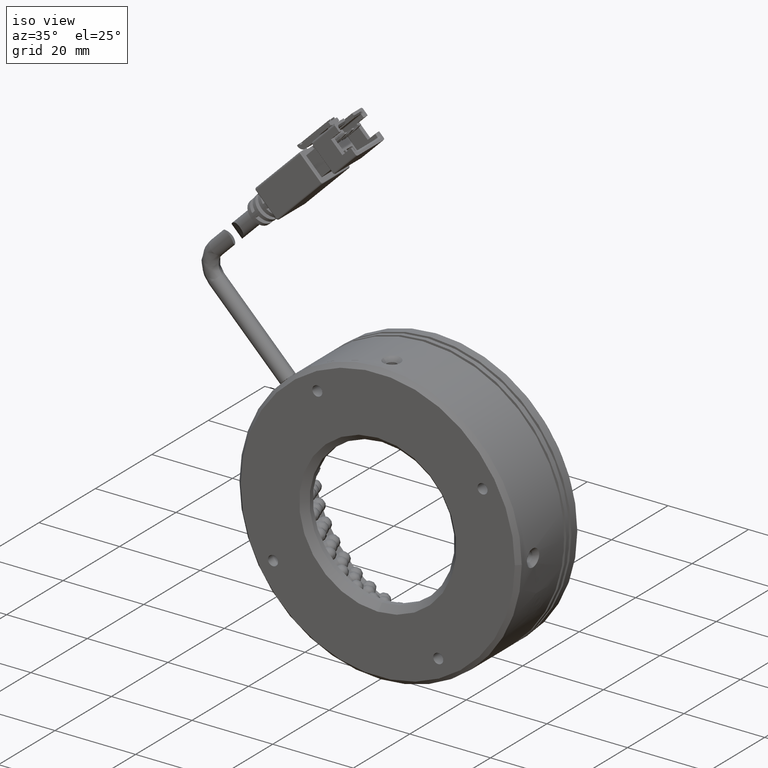
[diagram: clean part render]
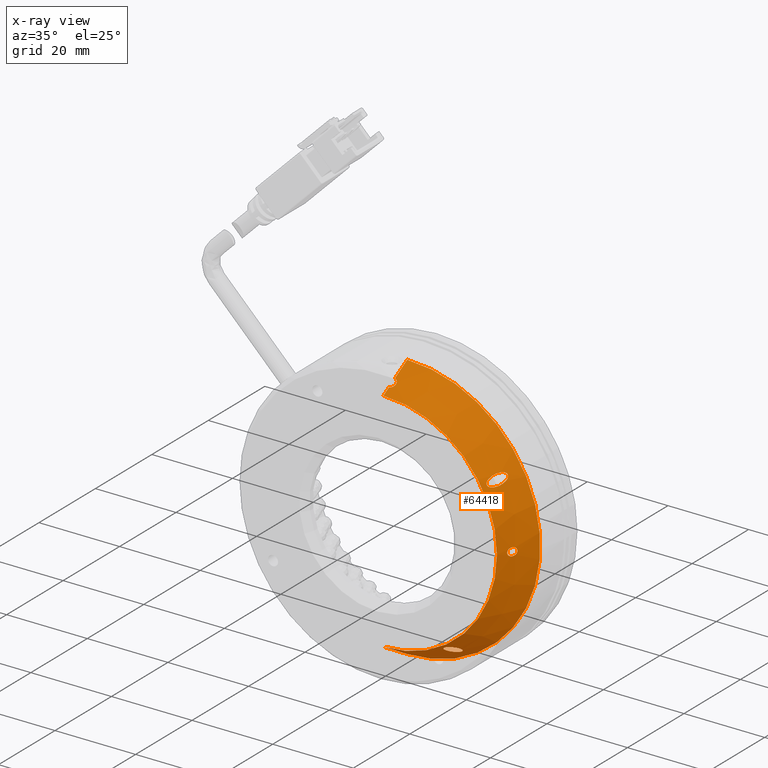
[diagram: x-ray — body ghosted, one internal face saturated and labeled with its STEP entity id]
A machine part, iso view, then the same camera in x-ray: the body is ghosted and one INTERNAL B-rep face — a face not visible from any outside direction — is saturated and labeled: STEP entity #64418.
In plain terms, the highlighted conical surface has half-angle 30 deg.
Its self-contained STEP definition (entity closure, byte-faithful):
#554 = VERTEX_POINT ( 'NONE', #58181 ) ;
#556 = CARTESIAN_POINT ( 'NONE',  ( -37.22376356038466800, -20.73693679055958200, -43.54857790766191500 ) ) ;
#1136 = CARTESIAN_POINT ( 'NONE',  ( -11.51822864637102800, -20.81969408785071400, 3.123709854910631000 ) ) ;
#1298 = CARTESIAN_POINT ( 'NONE',  ( -23.07694984551171700, -23.62697433885663400, -38.16291866363757600 ) ) ;
#1488 = CARTESIAN_POINT ( 'NONE',  ( -12.43008122877645500, -23.63135088573119400, 1.501705447081569200 ) ) ;
#1652 = CARTESIAN_POINT ( 'NONE',  ( -22.96922054498682200, -20.59976960885933300, -40.09514193172537200 ) ) ;
#2334 = CARTESIAN_POINT ( 'NONE',  ( -6.777956277533708600, -20.73750241288133000, -12.95670656944801100 ) ) ;
#2366 = B_SPLINE_CURVE_WITH_KNOTS ( 'NONE', 3,
 ( #102719, #94632, #38541, #54652, #6614, #62753, #14661, #70755, #22738, #78821 ),
 .UNSPECIFIED., .F., .F.,
 ( 4, 2, 2, 2, 4 ),
 ( 0.001683698339101764400, 0.002103092054709763200, 0.002522485770317762400, 0.002941879485925761100, 0.003361273201533759900 ),
 .UNSPECIFIED. ) ;
#3128 = CARTESIAN_POINT ( 'NONE',  ( -21.21675441060066100, -19.50752576058418300, -39.83219386107342100 ) ) ;
#3470 = CARTESIAN_POINT ( 'NONE',  ( -21.88628881093044900, -23.00312753893271300, -37.87690281592939100 ) ) ;
#3624 = CARTESIAN_POINT ( 'NONE',  ( -7.811315446356434000, -22.51549307234620300, -12.46131582281764800 ) ) ;
#3858 = VECTOR ( 'NONE', #58685, 1000.000000000000100 ) ;
#4046 = CARTESIAN_POINT ( 'NONE',  ( -36.22376356038444800, -21.73693679055958600, -42.95448307042066500 ) ) ;
#6036 = CARTESIAN_POINT ( 'NONE',  ( -36.68710870787895600, -20.88177625163563900, -43.46047810147527500 ) ) ;
#6614 = CARTESIAN_POINT ( 'NONE',  ( -36.57972804578415800, -20.96100171213445400, 17.20765431284115000 ) ) ;
#7596 = CARTESIAN_POINT ( 'NONE',  ( -11.24300144685170000, -22.55769004563290300, 0.6475745150449768700 ) ) ;
#7948 = CARTESIAN_POINT ( 'NONE',  ( -10.01749732556035100, -19.43529281115175800, 2.165930776527754000 ) ) ;
#9182 = ORIENTED_EDGE ( 'NONE', *, *, #91199, .T. ) ;
#9189 = CARTESIAN_POINT ( 'NONE',  ( -11.87679861631910900, -21.47534031281225000, 2.982409781591396100 ) ) ;
#9190 = ORIENTED_EDGE ( 'NONE', *, *, #75857, .F. ) ;
#9268 = VERTEX_POINT ( 'NONE', #44177 ) ;
#9328 = CARTESIAN_POINT ( 'NONE',  ( -23.28214192803038400, -23.42344910295543100, -38.41178264162199000 ) ) ;
#9369 = ORIENTED_EDGE ( 'NONE', *, *, #17802, .F. ) ;
#9522 = CARTESIAN_POINT ( 'NONE',  ( -12.33182574608302900, -23.68618247437155600, 1.270827928127359800 ) ) ;
#9673 = CARTESIAN_POINT ( 'NONE',  ( -22.64679769704466100, -20.08245933051756900, -40.26184743273331200 ) ) ;
#9989 = CARTESIAN_POINT ( 'NONE',  ( -7.300333702475970000, -21.61338569052001200, -12.10242548495502400 ) ) ;
#10361 = CARTESIAN_POINT ( 'NONE',  ( -6.795972323491197300, -20.76696992272197700, -13.38192625784991900 ) ) ;
#10592 = CARTESIAN_POINT ( 'NONE',  ( -37.22376356038467500, -16.31354303190076000, 19.89757451504466700 ) ) ;
#10782 = CARTESIAN_POINT ( 'NONE',  ( -22.12597681228731600, -19.54209303086313600, -40.33318759848836500 ) ) ;
#11116 = CARTESIAN_POINT ( 'NONE',  ( -21.02915169351517100, -19.83702148010070200, -39.49629041147679900 ) ) ;
#11188 = CARTESIAN_POINT ( 'NONE',  ( -37.22376356038466800, -16.31354303190076000, -46.10242548495533300 ) ) ;
#11263 = CARTESIAN_POINT ( 'NONE',  ( -7.641724003806247700, -22.21052251967334400, -13.99185252679292400 ) ) ;
#11387 = DIRECTION ( 'NONE',  ( -0.0000000000000000000, 1.000000000000000000, 0.0000000000000000000 ) ) ;
#11455 = CARTESIAN_POINT ( 'NONE',  ( -22.12907865898471400, -23.28794897654373100, -37.83318759848818800 ) ) ;
#11619 = CARTESIAN_POINT ( 'NONE',  ( -7.643780173665804900, -22.21417489874954800, -12.21473967936697100 ) ) ;
#11929 = EDGE_CURVE ( 'NONE', #43606, #62559, #47824, .T. ) ;
#12362 = DIRECTION ( 'NONE',  ( 0.0000000000000000000, 0.8660254037844353800, 0.5000000000000054400 ) ) ;
#12381 = VERTEX_POINT ( 'NONE', #31984 ) ;
#13119 = VERTEX_POINT ( 'NONE', #81782 ) ;
#13170 = CARTESIAN_POINT ( 'NONE',  ( -36.24574650120936100, -21.97971402510746200, 16.61014776869176800 ) ) ;
#14082 = CARTESIAN_POINT ( 'NONE',  ( -37.08056777850441000, -20.73693679055955700, -43.54857790766193700 ) ) ;
#14661 = CARTESIAN_POINT ( 'NONE',  ( -36.33602254855546900, -21.25994316579392100, 17.02873120265211400 ) ) ;
#15360 = EDGE_CURVE ( 'NONE', #57550, #62559, #86641, .T. ) ;
#15692 = CARTESIAN_POINT ( 'NONE',  ( -10.97826522371453500, -22.13432761069441000, 0.6695181167302163300 ) ) ;
#16043 = CARTESIAN_POINT ( 'NONE',  ( -10.14472610101541900, -19.33488018727011900, 2.507030271781238300 ) ) ;
#17293 = CARTESIAN_POINT ( 'NONE',  ( -12.17296802236225000, -22.13034195602866900, 2.743350160133649000 ) ) ;
#17442 = CARTESIAN_POINT ( 'NONE',  ( -23.40033677273194700, -23.15376457820582300, -38.65364403434539000 ) ) ;
#17650 = CARTESIAN_POINT ( 'NONE',  ( -12.09823085552053000, -23.58528059229585200, 0.9779587210988771600 ) ) ;
#17799 = CARTESIAN_POINT ( 'NONE',  ( -22.40996357091690800, -19.79575818506239000, -40.32203259758862400 ) ) ;
#17802 = EDGE_CURVE ( 'NONE', #99564, #554, #64123, .T. ) ;
#18195 = CARTESIAN_POINT ( 'NONE',  ( -37.22376356038467500, -22.73693679055958600, 16.18902639937197900 ) ) ;
#18465 = CARTESIAN_POINT ( 'NONE',  ( -6.912576492545571000, -20.95916385797935500, -13.74439459244358200 ) ) ;
#19218 = CARTESIAN_POINT ( 'NONE',  ( -20.96575815272499800, -20.44257674103097200, -39.04526005552036600 ) ) ;
#19370 = CARTESIAN_POINT ( 'NONE',  ( -7.782483397750292300, -22.46347168703145400, -13.79261027639162100 ) ) ;
#19727 = CARTESIAN_POINT ( 'NONE',  ( -7.442512177063253600, -21.85950797773096700, -12.10242548495502400 ) ) ;
#20133 = CARTESIAN_POINT ( 'NONE',  ( -37.22376356038466800, -16.31354303190076000, -46.10242548495533300 ) ) ;
#21253 = CARTESIAN_POINT ( 'NONE',  ( -36.40245465010184500, -22.32208362943907400, 16.41724766625548800 ) ) ;
#22738 = CARTESIAN_POINT ( 'NONE',  ( -36.22376356038467500, -21.61340241964101200, 16.82099470897320600 ) ) ;
#22985 = EDGE_CURVE ( 'NONE', #54475, #99564, #27686, .T. ) ;
#23077 = CARTESIAN_POINT ( 'NONE',  ( -7.371705974919331400, -21.73693679055958900, -14.10242548495502400 ) ) ;
#23607 = VERTEX_POINT ( 'NONE', #556 ) ;
#23795 = CARTESIAN_POINT ( 'NONE',  ( -10.62838680539689500, -21.49116361805718300, 0.8018284197307104000 ) ) ;
#24140 = CARTESIAN_POINT ( 'NONE',  ( -10.37213189494311600, -19.41673832778624100, 2.802496245190709200 ) ) ;
#24852 = CARTESIAN_POINT ( 'NONE',  ( -22.31902969122908300, -23.45856973348361800, -37.83318759848815200 ) ) ;
#25058 = VERTEX_POINT ( 'NONE', #23077 ) ;
#25162 = EDGE_LOOP ( 'NONE', ( #9182, #40016 ) ) ;
#25172 = VECTOR ( 'NONE', #60477, 1000.000000000000100 ) ;
#25191 = CARTESIAN_POINT ( 'NONE',  ( -22.22376356038446600, -23.37299831455817400, -37.83318759848836500 ) ) ;
#25298 = CARTESIAN_POINT ( 'NONE',  ( -36.22376356038467500, -21.73693679055958600, 16.74963210051000200 ) ) ;
#25404 = CARTESIAN_POINT ( 'NONE',  ( -12.39689520499157600, -22.77301293687164500, 2.402625863738276000 ) ) ;
#25553 = CARTESIAN_POINT ( 'NONE',  ( -23.45924174418464900, -22.85672748774286200, -38.87997084198148200 ) ) ;
#25743 = CARTESIAN_POINT ( 'NONE',  ( -11.84725646420200100, -23.35520785720759900, 0.7988498571394788700 ) ) ;
#25902 = CARTESIAN_POINT ( 'NONE',  ( -22.22376356038446900, -19.62381291169545200, -40.33318759848835800 ) ) ;
#26561 = CARTESIAN_POINT ( 'NONE',  ( -7.228734752532215400, -21.48944219363549400, -14.10242548495507200 ) ) ;
#26857 = EDGE_CURVE ( 'NONE', #57550, #88089, #2366, .T. ) ;
#27309 = CARTESIAN_POINT ( 'NONE',  ( -21.04222324868138800, -21.08521277374226300, -38.65480321753029400 ) ) ;
#27464 = CARTESIAN_POINT ( 'NONE',  ( -7.850212902445547600, -22.58648768132306700, -13.63413624501323300 ) ) ;
#27501 = LINE ( 'NONE', #11188, #46326 ) ;
#27686 = LINE ( 'NONE', #20133, #25172 ) ;
#27880 = CARTESIAN_POINT ( 'NONE',  ( -36.94215903926311000, -22.70619343665209300, -42.41053943392838500 ) ) ;
#29332 = CARTESIAN_POINT ( 'NONE',  ( -36.58592225394296100, -22.51000714623513200, 16.31317910095581800 ) ) ;
#29795 = AXIS2_PLACEMENT_3D ( 'NONE', #60603, #100592, #92809 ) ;
#29898 = CARTESIAN_POINT ( 'NONE',  ( -36.22376356038444800, -21.73693679055958600, -42.95448307042066500 ) ) ;
#30758 = ORIENTED_EDGE ( 'NONE', *, *, #22985, .F. ) ;
#31655 = ORIENTED_EDGE ( 'NONE', *, *, #76327, .F. ) ;
#31861 = CARTESIAN_POINT ( 'NONE',  ( -10.32834424335399600, -20.84332524079823700, 1.035161108427870700 ) ) ;
#31984 = CARTESIAN_POINT ( 'NONE',  ( -11.24300144685170000, -22.55769004563290300, 0.6475745150449768700 ) ) ;
#32193 = CARTESIAN_POINT ( 'NONE',  ( -10.62586871427903600, -19.62741775848515100, 2.989358353258707800 ) ) ;
#33459 = CARTESIAN_POINT ( 'NONE',  ( -12.47973747452426900, -23.17107374160343600, 2.099761307126119600 ) ) ;
#33611 = CARTESIAN_POINT ( 'NONE',  ( -23.47168874629417700, -22.33022196489894600, -39.23061156526422600 ) ) ;
#33818 = CARTESIAN_POINT ( 'NONE',  ( -11.52858994103464200, -22.97733428685247500, 0.6689894473165439700 ) ) ;
#34302 = CARTESIAN_POINT ( 'NONE',  ( -7.094448871304950700, -21.26305439004272200, -12.21319832374728200 ) ) ;
#35064 = CARTESIAN_POINT ( 'NONE',  ( -22.01961396310200000, -19.46989985614693500, -40.32178987960929800 ) ) ;
#35418 = CARTESIAN_POINT ( 'NONE',  ( -21.22143861204443400, -21.73241915822956800, -38.32596133910869400 ) ) ;
#35566 = CARTESIAN_POINT ( 'NONE',  ( -7.914975166324594200, -22.70495189563527200, -13.38838141872397500 ) ) ;
#35757 = ORIENTED_EDGE ( 'NONE', *, *, #11929, .F. ) ;
#35974 = CARTESIAN_POINT ( 'NONE',  ( -36.58096936538312600, -22.51397933665900200, -42.51570907389638900 ) ) ;
#37399 = CARTESIAN_POINT ( 'NONE',  ( -36.75306528832788900, -22.62191358938516200, 16.25172830254819400 ) ) ;
#38541 = CARTESIAN_POINT ( 'NONE',  ( -36.94030851338750000, -20.76819685967397100, 17.32461787431448000 ) ) ;
#39914 = CARTESIAN_POINT ( 'NONE',  ( -10.09720084762829000, -20.21535822616905200, 1.373669039488855300 ) ) ;
#40016 = ORIENTED_EDGE ( 'NONE', *, *, #58512, .T. ) ;
#40261 = CARTESIAN_POINT ( 'NONE',  ( -10.95214698531410800, -19.98672586071596400, 3.125690230019678900 ) ) ;
#41178 = CARTESIAN_POINT ( 'NONE',  ( -11.24300144685170000, -20.39403531776828500, 3.147574515044965400 ) ) ;
#41321 = CARTESIAN_POINT ( 'NONE',  ( -22.64415230027507400, -23.64665106635011300, -37.90046651366083100 ) ) ;
#41521 = CARTESIAN_POINT ( 'NONE',  ( -12.49555151400458900, -23.44083245184121700, 1.826465979669141100 ) ) ;
#41678 = CARTESIAN_POINT ( 'NONE',  ( -23.36943498519935900, -21.68325004249724600, -39.59875617416619800 ) ) ;
#41885 = CARTESIAN_POINT ( 'NONE',  ( -11.24300144685170000, -22.55769004563290300, 0.6475745150449768700 ) ) ;
#41916 = DIRECTION ( 'NONE',  ( -0.0000000000000000000, -1.000000000000000000, -0.0000000000000000000 ) ) ;
#42022 = EDGE_CURVE ( 'NONE', #74327, #13119, #51449, .T. ) ;
#42363 = CARTESIAN_POINT ( 'NONE',  ( -6.915606860627770300, -20.96419216052076000, -12.45473583946140300 ) ) ;
#43133 = CARTESIAN_POINT ( 'NONE',  ( -21.67788974153411600, -19.33972924451122600, -40.21480747775618200 ) ) ;
#43481 = CARTESIAN_POINT ( 'NONE',  ( -21.49797626354831700, -22.38189082735741000, -38.05720094836896500 ) ) ;
#43565 = ORIENTED_EDGE ( 'NONE', *, *, #15360, .T. ) ;
#43606 = VERTEX_POINT ( 'NONE', #82691 ) ;
#43617 = CARTESIAN_POINT ( 'NONE',  ( -7.932625653761102800, -22.73751479385806100, -12.96443252060796600 ) ) ;
#44020 = CARTESIAN_POINT ( 'NONE',  ( -36.33584036890712100, -22.21361350326200700, -42.68272576060002900 ) ) ;
#44177 = CARTESIAN_POINT ( 'NONE',  ( -11.24300144685170000, -20.39403531776828500, 3.147574515044965400 ) ) ;
#44550 = ORIENTED_EDGE ( 'NONE', *, *, #26857, .F. ) ;
#45481 = CARTESIAN_POINT ( 'NONE',  ( -37.08130917440510600, -22.73693679055957900, 16.18902639937197600 ) ) ;
#46044 = CARTESIAN_POINT ( 'NONE',  ( -36.33499386340009400, -21.26212631018349700, -43.23229002234892700 ) ) ;
#46326 = VECTOR ( 'NONE', #67374, 1000.000000000000100 ) ;
#47614 = CARTESIAN_POINT ( 'NONE',  ( -11.10534113531478300, -22.34694921708992900, 0.6475745150449767600 ) ) ;
#47824 = CIRCLE ( 'NONE', #51602, 33.00000000000000000 ) ;
#47952 = CARTESIAN_POINT ( 'NONE',  ( -10.00860442919628400, -19.82742147913850100, 1.681334977706166400 ) ) ;
#48296 = CARTESIAN_POINT ( 'NONE',  ( -11.24300144685170000, -20.39403531776828500, 3.147574515044965400 ) ) ;
#48364 = VERTEX_POINT ( 'NONE', #57384 ) ;
#49217 = CARTESIAN_POINT ( 'NONE',  ( -11.38677307084630300, -20.60515972497516700, 3.147574515044965400 ) ) ;
#49367 = CARTESIAN_POINT ( 'NONE',  ( -22.98266962167451400, -23.66904869791883200, -38.08161480852509600 ) ) ;
#49552 = CARTESIAN_POINT ( 'NONE',  ( -12.46166476750635800, -23.57988216543033700, 1.613443491544015200 ) ) ;
#49711 = CARTESIAN_POINT ( 'NONE',  ( -23.16331210408815300, -21.02775375236591100, -39.91805658370333300 ) ) ;
#50375 = CARTESIAN_POINT ( 'NONE',  ( -6.797068559688403500, -20.76876550560859500, -12.81635830635336900 ) ) ;
#50686 = VECTOR ( 'NONE', #12362, 1000.000000000000100 ) ;
#51107 = EDGE_LOOP ( 'NONE', ( #85121, #100388 ) ) ;
#51143 = CARTESIAN_POINT ( 'NONE',  ( -21.36616679225995000, -19.39061639611098200, -39.99948754525378500 ) ) ;
#51292 = CARTESIAN_POINT ( 'NONE',  ( -7.371705974919331400, -21.73693679055958900, -14.10242548495502400 ) ) ;
#51449 = B_SPLINE_CURVE_WITH_KNOTS ( 'NONE', 3,
 ( #98843, #10782, #35064, #91080, #43133, #99194, #51143, #3128, #59218, #11116, #67304, #19218, #75322, #27309, #83393, #35418, #91421, #43481, #99559, #51494, #3470, #59576, #11455, #67638 ),
 .UNSPECIFIED., .F., .F.,
 ( 4, 2, 2, 2, 2, 2, 2, 2, 2, 2, 2, 4 ),
 ( 0.0000000000000000000, 0.0003794468816183784800, 0.0007588937632367569600, 0.001138340644855135500, 0.001517787526473513900, 0.002276681289710260600, 0.003035575052947007000, 0.003794468816183753000, 0.004553362579420499500, 0.005312256342657245000, 0.005691703224275612200, 0.006071150105893977600 ),
 .UNSPECIFIED. ) ;
#51494 = CARTESIAN_POINT ( 'NONE',  ( -21.81310888476683400, -22.90180316729351900, -37.90031822223703300 ) ) ;
#51602 = AXIS2_PLACEMENT_3D ( 'NONE', #89880, #41916, #97989 ) ;
#51633 = CARTESIAN_POINT ( 'NONE',  ( -7.855553074435658100, -22.59617619867805200, -12.57272873454185500 ) ) ;
#51694 = CARTESIAN_POINT ( 'NONE',  ( -37.22376356038466800, -22.73693679055958600, -42.39387736928264200 ) ) ;
#51703 = VERTEX_POINT ( 'NONE', #89146 ) ;
#52050 = CARTESIAN_POINT ( 'NONE',  ( -36.22376356038444800, -21.85960216332461000, -42.88362245969725700 ) ) ;
#52147 = B_SPLINE_CURVE_WITH_KNOTS ( 'NONE', 3,
 ( #41178, #49217, #1136, #57289, #9189, #65365, #17293, #73374, #25404, #81425, #33459, #89506, #41521, #97607, #49552, #1488, #57629, #9522, #65728, #17650, #73729, #25743, #81775, #33818, #89841, #41885 ),
 .UNSPECIFIED., .F., .F.,
 ( 4, 2, 2, 2, 2, 2, 2, 2, 2, 2, 2, 2, 4 ),
 ( 0.005950729107602354200, 0.006705304214777346600, 0.007459879321952338900, 0.008214454429127330400, 0.008969029536302323600, 0.009346317089889815900, 0.009723604643477308200, 0.009912248420271052600, 0.01010089219706479500, 0.01047817975065227900, 0.01085546730423976200, 0.01123275485782724800, 0.01198732996500220600 ),
 .UNSPECIFIED. ) ;
#53181 = CARTESIAN_POINT ( 'NONE',  ( -36.22376356038467500, -21.73693679055958600, 16.74963210051000200 ) ) ;
#54068 = CARTESIAN_POINT ( 'NONE',  ( -36.57751122338615300, -20.96293761849323900, -43.41133839915752900 ) ) ;
#54475 = VERTEX_POINT ( 'NONE', #79424 ) ;
#54652 = CARTESIAN_POINT ( 'NONE',  ( -36.68999462015280200, -20.88026034299949200, 17.25654685597901100 ) ) ;
#55382 = B_SPLINE_CURVE_WITH_KNOTS ( 'NONE', 3,
 ( #51292, #99352, #59377, #11263, #67446, #19370, #75473, #27464, #83531, #35566, #91565, #43617, #99714, #51633, #3624, #59726, #11619, #67770, #19727, #75816 ),
 .UNSPECIFIED., .F., .F.,
 ( 4, 2, 2, 2, 2, 2, 2, 2, 2, 4 ),
 ( 0.003360517467525904600, 0.003777250519045581900, 0.004193983570565259200, 0.004402350096325097400, 0.004610716622084935600, 0.005027449673604616300, 0.005444182725124296200, 0.005860915776643977000, 0.006277648828163657700, 0.006694381879683337600 ),
 .UNSPECIFIED. ) ;
#56040 = CARTESIAN_POINT ( 'NONE',  ( -9.989748613403000000, -19.57157129666699200, 1.954431966903962700 ) ) ;
#56323 = FACE_BOUND ( 'NONE', #51107, .T. ) ;
#56348 = EDGE_LOOP ( 'NONE', ( #30758, #73294, #101616, #58078, #44550, #43565, #35757, #31655, #94284, #9369 ) ) ;
#57289 = CARTESIAN_POINT ( 'NONE',  ( -11.76295387951934400, -21.25393437337983800, 3.041605699403914900 ) ) ;
#57384 = CARTESIAN_POINT ( 'NONE',  ( -7.371705974919345600, -21.73693679055958200, -12.10242548495502600 ) ) ;
#57441 = CARTESIAN_POINT ( 'NONE',  ( -23.22576472062973000, -23.50386272469513600, -38.32766431992719400 ) ) ;
#57550 = VERTEX_POINT ( 'NONE', #69348 ) ;
#57629 = CARTESIAN_POINT ( 'NONE',  ( -12.40915949351425100, -23.65154690539933200, 1.443110193115795900 ) ) ;
#57783 = CARTESIAN_POINT ( 'NONE',  ( -22.85492184485776300, -20.38868769878456200, -40.17264928322494900 ) ) ;
#58078 = ORIENTED_EDGE ( 'NONE', *, *, #101531, .F. ) ;
#58181 = CARTESIAN_POINT ( 'NONE',  ( -36.22376356038444800, -21.73693679055958600, -42.95448307042066500 ) ) ;
#58461 = CARTESIAN_POINT ( 'NONE',  ( -6.777275444770992000, -20.73638665008905600, -13.24027501896241100 ) ) ;
#58512 = EDGE_CURVE ( 'NONE', #9268, #12381, #52147, .T. ) ;
#58685 = DIRECTION ( 'NONE',  ( 0.0000000000000000000, 0.8660254037844353800, 0.5000000000000054400 ) ) ;
#59218 = CARTESIAN_POINT ( 'NONE',  ( -21.15970745025480700, -19.58471260122459200, -39.74583188929354100 ) ) ;
#59377 = CARTESIAN_POINT ( 'NONE',  ( -7.510802757835533000, -21.97903567050248700, -14.08056250904884600 ) ) ;
#59512 = CARTESIAN_POINT ( 'NONE',  ( -37.22376356038467500, -24.73693679055957900, -13.10242548495533300 ) ) ;
#59576 = CARTESIAN_POINT ( 'NONE',  ( -22.04419556198803300, -23.19584430896197000, -37.84352332252316800 ) ) ;
#59726 = CARTESIAN_POINT ( 'NONE',  ( -7.705172089049360900, -22.32402097448376600, -12.28236228996247600 ) ) ;
#60477 = DIRECTION ( 'NONE',  ( 6.123233995736832600E-017, 0.8660254037844353800, -0.5000000000000054400 ) ) ;
#60603 = CARTESIAN_POINT ( 'NONE',  ( -37.22376356038467500, -16.31354303190076000, -13.10242548495533300 ) ) ;
#61545 = ORIENTED_EDGE ( 'NONE', *, *, #77408, .F. ) ;
#62157 = CARTESIAN_POINT ( 'NONE',  ( -36.94052396413528800, -20.76787884122579800, -43.52966094241424600 ) ) ;
#62559 = VERTEX_POINT ( 'NONE', #102766 ) ;
#62753 = CARTESIAN_POINT ( 'NONE',  ( -36.40293500309454800, -21.15119156477078000, 17.09353577734027100 ) ) ;
#64123 = B_SPLINE_CURVE_WITH_KNOTS ( 'NONE', 3,
 ( #51694, #99424, #27880, #83940, #35974, #91970, #44020, #100111, #52050, #4046 ),
 .UNSPECIFIED., .F., .F.,
 ( 4, 2, 2, 2, 4 ),
 ( 0.001673488260522944700, 0.002089471170989709200, 0.002505454081456473400, 0.002921436991923237500, 0.003337419902390002000 ),
 .UNSPECIFIED. ) ;
#64130 = CARTESIAN_POINT ( 'NONE',  ( -10.04696001906443700, -19.38190252542250700, 2.281149745876394100 ) ) ;
#64418 = ADVANCED_FACE ( 'NONE', ( #77615, #96474, #56323, #98975 ), #86400, .F. ) ;
#64851 = B_SPLINE_CURVE_WITH_KNOTS ( 'NONE', 3,
 ( #7596, #47614, #15692, #71777, #23795, #79833, #31861, #87939, #39914, #96027, #47952, #104092, #56040, #7948, #64130, #16043, #72128, #24140, #80167, #32193, #88264, #40261, #96373, #48296 ),
 .UNSPECIFIED., .F., .F.,
 ( 4, 2, 2, 2, 2, 2, 2, 2, 2, 2, 2, 4 ),
 ( 0.0000000000000000000, 0.0007438411384502948200, 0.001487682276900589600, 0.002231523415350884300, 0.002975364553801179300, 0.003347285123026326300, 0.003719205692251474200, 0.004091126261476621200, 0.004463046830701768700, 0.004834967399926916100, 0.005206887969152063600, 0.005950729107602354200 ),
 .UNSPECIFIED. ) ;
#65365 = CARTESIAN_POINT ( 'NONE',  ( -12.08166838116179600, -21.91351051255679400, 2.833097994634158600 ) ) ;
#65526 = CARTESIAN_POINT ( 'NONE',  ( -23.36897124885411600, -23.24946306563324300, -38.57382649330308800 ) ) ;
#65663 = EDGE_CURVE ( 'NONE', #51703, #94663, #71978, .T. ) ;
#65728 = CARTESIAN_POINT ( 'NONE',  ( -12.25858968546199000, -23.67271511630060500, 1.158865452203860800 ) ) ;
#65874 = CARTESIAN_POINT ( 'NONE',  ( -22.57233737356045800, -19.98384879235903400, -40.28647628890557500 ) ) ;
#66558 = CARTESIAN_POINT ( 'NONE',  ( -6.863780785666588900, -20.87859272866875700, -13.63365225213480500 ) ) ;
#67304 = CARTESIAN_POINT ( 'NONE',  ( -20.99115333093126900, -20.03610772505069100, -39.33752620441243400 ) ) ;
#67374 = DIRECTION ( 'NONE',  ( 6.123233995736832600E-017, 0.8660254037844353800, -0.5000000000000054400 ) ) ;
#67446 = CARTESIAN_POINT ( 'NONE',  ( -7.703254725791842900, -22.32058613809341800, -13.92473044517990600 ) ) ;
#67571 = DIRECTION ( 'NONE',  ( 0.0000000000000000000, 0.0000000000000000000, 1.000000000000000000 ) ) ;
#67638 = CARTESIAN_POINT ( 'NONE',  ( -22.22376356038446600, -23.37299831455817400, -37.83318759848836500 ) ) ;
#67770 = CARTESIAN_POINT ( 'NONE',  ( -7.511403553714176300, -21.98008150745343400, -12.12435445072599000 ) ) ;
#69250 = CARTESIAN_POINT ( 'NONE',  ( -36.33497328281922700, -22.21181571845361800, 16.47888660886528500 ) ) ;
#69348 = CARTESIAN_POINT ( 'NONE',  ( -37.22376356038467500, -20.73693679055958200, 17.34372693775124900 ) ) ;
#70154 = CARTESIAN_POINT ( 'NONE',  ( -37.22376356038466800, -20.73693679055958200, -43.54857790766191500 ) ) ;
#70312 = EDGE_LOOP ( 'NONE', ( #9190, #61545 ) ) ;
#70755 = CARTESIAN_POINT ( 'NONE',  ( -36.24595838532665900, -21.49300224651058500, 16.89131522734455300 ) ) ;
#71777 = CARTESIAN_POINT ( 'NONE',  ( -10.73972496597178200, -21.70644753997753500, 0.7465225748286048500 ) ) ;
#71978 = LINE ( 'NONE', #76210, #50686 ) ;
#72128 = CARTESIAN_POINT ( 'NONE',  ( -10.21399957418054200, -19.34269065905788700, 2.617610805915555600 ) ) ;
#72172 = B_SPLINE_CURVE_WITH_KNOTS ( 'NONE', 3,
 ( #29898, #85994, #94045, #46044, #102130, #54068, #6036, #62157, #14082, #70154 ),
 .UNSPECIFIED., .F., .F.,
 ( 4, 2, 2, 2, 4 ),
 ( 0.003337419902390002000, 0.003757264186302571600, 0.004177108470215141700, 0.004596952754127711300, 0.005016797038040280900 ),
 .UNSPECIFIED. ) ;
#72598 = CARTESIAN_POINT ( 'NONE',  ( -22.22376356038446900, -19.62381291169545200, -40.33318759848835800 ) ) ;
#73294 = ORIENTED_EDGE ( 'NONE', *, *, #83356, .F. ) ;
#73374 = CARTESIAN_POINT ( 'NONE',  ( -12.33005851086422500, -22.55864004336521600, 2.528828198576761100 ) ) ;
#73527 = CARTESIAN_POINT ( 'NONE',  ( -23.44530770646523300, -22.95788558332445500, -38.80630838892916000 ) ) ;
#73551 = B_SPLINE_CURVE_WITH_KNOTS ( 'NONE', 3,
 ( #53181, #101242, #13170, #69250, #21253, #77335, #29332, #85437, #37399, #93480, #45481, #101571 ),
 .UNSPECIFIED., .F., .F.,
 ( 4, 2, 2, 2, 2, 4 ),
 ( 0.003361273201533759900, 0.003779241100398689400, 0.004197208999263618900, 0.004406192948696080600, 0.004615176898128541500, 0.005033144796993476200 ),
 .UNSPECIFIED. ) ;
#73729 = CARTESIAN_POINT ( 'NONE',  ( -12.01282723741606700, -23.51515249307407600, 0.9077824903930760100 ) ) ;
#73873 = CARTESIAN_POINT ( 'NONE',  ( -22.32215057881530400, -19.70603443534839300, -40.33318759848835100 ) ) ;
#74033 = CARTESIAN_POINT ( 'NONE',  ( -37.22376356038466800, -22.73693679055958600, -42.39387736928264200 ) ) ;
#74215 = CARTESIAN_POINT ( 'NONE',  ( -7.371705974919345600, -21.73693679055958200, -12.10242548495502600 ) ) ;
#74327 = VERTEX_POINT ( 'NONE', #72598 ) ;
#74571 = CARTESIAN_POINT ( 'NONE',  ( -7.084451242025441100, -21.24558777449047000, -14.01170895170468400 ) ) ;
#75322 = CARTESIAN_POINT ( 'NONE',  ( -20.97919767477271000, -20.65575789367760300, -38.90824062823838100 ) ) ;
#75473 = CARTESIAN_POINT ( 'NONE',  ( -7.807221455804644900, -22.50830628771520700, -13.74230215058408800 ) ) ;
#75816 = CARTESIAN_POINT ( 'NONE',  ( -7.371705974919345600, -21.73693679055958200, -12.10242548495502600 ) ) ;
#75857 = EDGE_CURVE ( 'NONE', #25058, #48364, #55382, .T. ) ;
#76210 = CARTESIAN_POINT ( 'NONE',  ( -37.22376356038467500, -16.31354303190076000, 19.89757451504466700 ) ) ;
#76327 = EDGE_CURVE ( 'NONE', #23607, #43606, #27501, .T. ) ;
#76759 = EDGE_CURVE ( 'NONE', #13119, #74327, #95729, .T. ) ;
#77335 = CARTESIAN_POINT ( 'NONE',  ( -36.53533472891862700, -22.46515518588921600, 16.33792393166424600 ) ) ;
#77408 = EDGE_CURVE ( 'NONE', #48364, #25058, #103795, .T. ) ;
#77615 = FACE_OUTER_BOUND ( 'NONE', #56348, .T. ) ;
#78821 = CARTESIAN_POINT ( 'NONE',  ( -36.22376356038467500, -21.73693679055958600, 16.74963210051000200 ) ) ;
#79424 = CARTESIAN_POINT ( 'NONE',  ( -37.22376356038467500, -24.73693679055957900, -41.23917683090338200 ) ) ;
#79833 = CARTESIAN_POINT ( 'NONE',  ( -10.42186338768829200, -21.05786829979856400, 0.9467101973421648800 ) ) ;
#80167 = CARTESIAN_POINT ( 'NONE',  ( -10.45748404704531300, -19.47925838953440100, 2.875228428042170000 ) ) ;
#81167 = EDGE_CURVE ( 'NONE', #554, #23607, #72172, .T. ) ;
#81425 = CARTESIAN_POINT ( 'NONE',  ( -12.46321977901181200, -23.07406545339011200, 2.179672262879217100 ) ) ;
#81574 = CARTESIAN_POINT ( 'NONE',  ( -23.48200435502795000, -22.54620442728340300, -39.09517399830156100 ) ) ;
#81775 = CARTESIAN_POINT ( 'NONE',  ( -11.76527914151890500, -23.26374686226473500, 0.7587828203892572600 ) ) ;
#81782 = CARTESIAN_POINT ( 'NONE',  ( -22.22376356038446600, -23.37299831455817400, -37.83318759848836500 ) ) ;
#82271 = CARTESIAN_POINT ( 'NONE',  ( -7.230557650737253500, -21.49392233044461200, -12.12455358847562100 ) ) ;
#82599 = CARTESIAN_POINT ( 'NONE',  ( -7.371705974919331400, -21.73693679055958900, -14.10242548495502400 ) ) ;
#82691 = CARTESIAN_POINT ( 'NONE',  ( -37.22376356038467500, -16.31354303190076000, -46.10242548495533300 ) ) ;
#83356 = EDGE_CURVE ( 'NONE', #51703, #54475, #100657, .T. ) ;
#83393 = CARTESIAN_POINT ( 'NONE',  ( -21.09161038301356000, -21.30055751131752100, -38.53887510283171700 ) ) ;
#83531 = CARTESIAN_POINT ( 'NONE',  ( -7.868760292854005900, -22.62036125764190700, -13.57599408704844800 ) ) ;
#83940 = CARTESIAN_POINT ( 'NONE',  ( -36.69190968316112800, -22.59477768815831700, -42.47140224433280100 ) ) ;
#85121 = ORIENTED_EDGE ( 'NONE', *, *, #42022, .T. ) ;
#85437 = CARTESIAN_POINT ( 'NONE',  ( -36.69462902322123900, -22.58811006822307000, 16.27023535715924800 ) ) ;
#85994 = CARTESIAN_POINT ( 'NONE',  ( -36.22376356038445500, -21.61313277290988600, -43.02600144682079300 ) ) ;
#86400 = CONICAL_SURFACE ( 'NONE', #29795, 33.00000000000000000, 0.5235987755983051400 ) ;
#86641 = LINE ( 'NONE', #10592, #3858 ) ;
#87939 = CARTESIAN_POINT ( 'NONE',  ( -10.16671569766650100, -20.42364651392339400, 1.247987207653570500 ) ) ;
#88089 = VERTEX_POINT ( 'NONE', #25298 ) ;
#88264 = CARTESIAN_POINT ( 'NONE',  ( -10.70855400235712600, -19.71242065470287500, 3.030913414432288000 ) ) ;
#88652 = AXIS2_PLACEMENT_3D ( 'NONE', #59512, #11387, #67571 ) ;
#89146 = CARTESIAN_POINT ( 'NONE',  ( -37.22376356038467500, -24.73693679055957900, 15.03432586099271600 ) ) ;
#89304 = CARTESIAN_POINT ( 'NONE',  ( -22.42275238001242600, -23.53538197597976700, -37.84384934490885400 ) ) ;
#89506 = CARTESIAN_POINT ( 'NONE',  ( -12.49590205995173700, -23.35478545311198000, 1.922784725851853800 ) ) ;
#89647 = CARTESIAN_POINT ( 'NONE',  ( -23.41550013853525400, -21.89990982141873500, -39.48170362565058900 ) ) ;
#89841 = CARTESIAN_POINT ( 'NONE',  ( -11.38264825980980400, -22.77147196096935700, 0.6475745150449768700 ) ) ;
#89880 = CARTESIAN_POINT ( 'NONE',  ( -37.22376356038467500, -16.31354303190076000, -13.10242548495533300 ) ) ;
#90310 = CARTESIAN_POINT ( 'NONE',  ( -7.029375112700300600, -21.15382785650841400, -12.27985627135461900 ) ) ;
#91080 = CARTESIAN_POINT ( 'NONE',  ( -21.79633809207373900, -19.36807984019703400, -40.26349270222550600 ) ) ;
#91199 = EDGE_CURVE ( 'NONE', #12381, #9268, #64851, .T. ) ;
#91421 = CARTESIAN_POINT ( 'NONE',  ( -21.30230454521023700, -21.94988805102278900, -38.22859466040261400 ) ) ;
#91565 = CARTESIAN_POINT ( 'NONE',  ( -7.931988446741752500, -22.73634175591263700, -13.24867224260015600 ) ) ;
#91970 = CARTESIAN_POINT ( 'NONE',  ( -36.40330892298315700, -22.32331012175976400, -42.62141473433642600 ) ) ;
#92809 = DIRECTION ( 'NONE',  ( 0.0000000000000000000, 0.0000000000000000000, 1.000000000000000000 ) ) ;
#93480 = CARTESIAN_POINT ( 'NONE',  ( -36.94166674408499100, -22.70615533007467600, 16.20570831117922600 ) ) ;
#94045 = CARTESIAN_POINT ( 'NONE',  ( -36.24597916290897400, -21.49343270721361400, -43.09591737321576200 ) ) ;
#94284 = ORIENTED_EDGE ( 'NONE', *, *, #81167, .F. ) ;
#94632 = CARTESIAN_POINT ( 'NONE',  ( -37.08058313454807800, -20.73693679055958600, 17.34372693775124900 ) ) ;
#94663 = VERTEX_POINT ( 'NONE', #18195 ) ;
#95729 = B_SPLINE_CURVE_WITH_KNOTS ( 'NONE', 3,
 ( #25191, #24852, #89304, #41321, #97417, #49367, #1298, #57441, #9328, #65526, #17442, #73527, #25553, #81574, #33611, #89647, #41678, #97747, #49711, #1652, #57783, #9673, #65874, #17799, #73873, #25902 ),
 .UNSPECIFIED., .F., .F.,
 ( 4, 2, 2, 2, 2, 2, 2, 2, 2, 2, 2, 2, 4 ),
 ( 0.006071150105893977600, 0.006452926246953654000, 0.006834702388013331300, 0.007216478529073007800, 0.007598254670132685100, 0.007980030811192362300, 0.008361806952252038800, 0.009125359234371403800, 0.009888911516490770500, 0.01065246379861013600, 0.01141601608072950100, 0.01179779222178918600, 0.01217956836284886700 ),
 .UNSPECIFIED. ) ;
#96027 = CARTESIAN_POINT ( 'NONE',  ( -10.02656496781108700, -19.92243399476920000, 1.599260448021871700 ) ) ;
#96373 = CARTESIAN_POINT ( 'NONE',  ( -11.10127500046869500, -20.18591419381635200, 3.147574515044964100 ) ) ;
#96474 = FACE_BOUND ( 'NONE', #70312, .T. ) ;
#97417 = CARTESIAN_POINT ( 'NONE',  ( -22.76250901126025300, -23.67936059248712900, -37.94791679263708100 ) ) ;
#97607 = CARTESIAN_POINT ( 'NONE',  ( -12.47283808386488600, -23.54844143918082400, 1.667658508877308200 ) ) ;
#97747 = CARTESIAN_POINT ( 'NONE',  ( -23.24350385070913200, -21.24717447929208800, -39.81701571879477100 ) ) ;
#97989 = DIRECTION ( 'NONE',  ( 0.0000000000000000000, 0.0000000000000000000, 1.000000000000000000 ) ) ;
#98418 = CARTESIAN_POINT ( 'NONE',  ( -6.866445573476786600, -20.88298885082649600, -12.56394337392217500 ) ) ;
#98843 = CARTESIAN_POINT ( 'NONE',  ( -22.22376356038446900, -19.62381291169545200, -40.33318759848835800 ) ) ;
#98975 = FACE_BOUND ( 'NONE', #25162, .T. ) ;
#99194 = CARTESIAN_POINT ( 'NONE',  ( -21.46199242345470300, -19.35103143249650900, -40.08231046991166100 ) ) ;
#99352 = CARTESIAN_POINT ( 'NONE',  ( -7.442624616897099100, -21.85970262005754300, -14.10242548495507500 ) ) ;
#99424 = CARTESIAN_POINT ( 'NONE',  ( -37.08162090191197500, -22.73693679055970700, -42.39387736928257800 ) ) ;
#99559 = CARTESIAN_POINT ( 'NONE',  ( -21.61097952977838000, -22.59361899347829100, -37.98397668726450100 ) ) ;
#99564 = VERTEX_POINT ( 'NONE', #74033 ) ;
#99714 = CARTESIAN_POINT ( 'NONE',  ( -7.916187675370070800, -22.70718274436842800, -12.82404840798997900 ) ) ;
#100111 = CARTESIAN_POINT ( 'NONE',  ( -36.24581898266537600, -21.98035553533075900, -42.81463110586997100 ) ) ;
#100388 = ORIENTED_EDGE ( 'NONE', *, *, #76759, .T. ) ;
#100592 = DIRECTION ( 'NONE',  ( -0.0000000000000000000, 1.000000000000000000, 0.0000000000000000000 ) ) ;
#100657 = CIRCLE ( 'NONE', #88652, 28.13675134594804900 ) ;
#101242 = CARTESIAN_POINT ( 'NONE',  ( -36.22376356038467500, -21.86005118052029400, 16.67851210417519100 ) ) ;
#101531 = EDGE_CURVE ( 'NONE', #88089, #94663, #73551, .T. ) ;
#101571 = CARTESIAN_POINT ( 'NONE',  ( -37.22376356038467500, -22.73693679055958600, 16.18902639937197900 ) ) ;
#101616 = ORIENTED_EDGE ( 'NONE', *, *, #65663, .T. ) ;
#102130 = CARTESIAN_POINT ( 'NONE',  ( -36.40190722674893900, -21.15275448314320900, -43.29745434940705500 ) ) ;
#102719 = CARTESIAN_POINT ( 'NONE',  ( -37.22376356038467500, -20.73693679055958200, 17.34372693775124900 ) ) ;
#102766 = CARTESIAN_POINT ( 'NONE',  ( -37.22376356038466800, -16.31354303190076000, 19.89757451504466700 ) ) ;
#103795 = B_SPLINE_CURVE_WITH_KNOTS ( 'NONE', 3,
 ( #74215, #9989, #82271, #34302, #90310, #42363, #98418, #50375, #2334, #58461, #10361, #66558, #18465, #74571, #26561, #82599 ),
 .UNSPECIFIED., .F., .F.,
 ( 4, 2, 2, 2, 2, 2, 2, 4 ),
 ( 0.0000000000000000000, 0.0004200646834407388900, 0.0008401293668814777900, 0.001260194050322217000, 0.001680258733762955600, 0.002100323417203694600, 0.002520388100644433900, 0.003360517467525904600 ),
 .UNSPECIFIED. ) ;
#104092 = CARTESIAN_POINT ( 'NONE',  ( -9.990393740092411400, -19.65200952232089200, 1.859240878740378900 ) ) ;